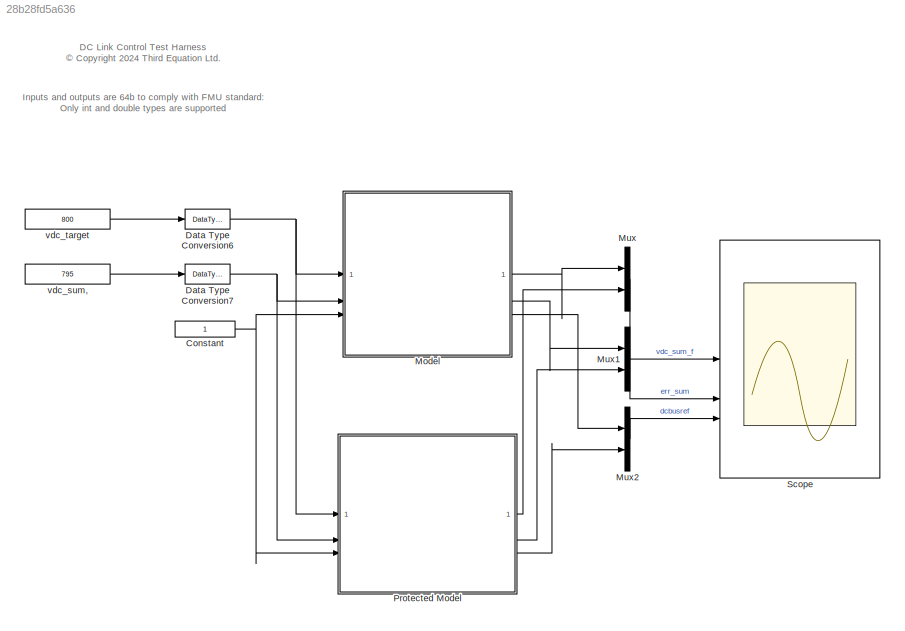
MODEL slx_28b28fd5a636
KIND model
CONFIG AbsTol = 1e-6
CONFIG EnableMultiTasking = off
CONFIG FixedStep = auto
CONFIG MaxStep = auto
CONFIG MinStep = auto
CONFIG RelTol = 1e-4
CONFIG SampleTimeConstraint = Unconstrained
CONFIG SolverName = FixedStepAuto
CONFIG StartTime = 0.0
CONFIG StopTime = inf
BLOCK [Constant] Constant
  OutDataTypeStr = boolean
BLOCK [DataTypeConversion] Data Type Conversion6
  OutDataTypeStr = single
  RndMeth = Floor
  SaturateOnIntegerOverflow = off
BLOCK [DataTypeConversion] Data Type Conversion7
  OutDataTypeStr = single
  RndMeth = Floor
  SaturateOnIntegerOverflow = off
BLOCK [ModelReference] Model
  ModelNameDialog = DC_core_control.slx
  ModelReferenceVersion = 1.16
BLOCK [Mux] Mux
  DisplayOption = bar
  Inputs = 2
BLOCK [Mux] Mux1
  DisplayOption = bar
  Inputs = 2
BLOCK [Mux] Mux2
  DisplayOption = bar
  Inputs = 2
BLOCK [ModelReference] Protected Model
  CopyOfModelProtected = on
  ModelNameDialog = DC_core_control_protected.slxp
  ModelReferenceVersion = 1.16
BLOCK [Scope] Scope
  Floating = off
  NumInputPorts = 3
  ScopeSpecificationString = Simulink.scopes.TimeScopeBlockCfg('CurrentConfiguration', extmgr.ConfigurationSet(extmgr.Configuration('Core','General UI',true),extmgr.Configuration('Core','Source UI',true),extmgr.Configuration('Sources','WiredSimulink',true),extmgr.Configuration('Visuals','Time Domain',true,'SerializedDisplays',{struct('MinYLimReal','695.00012','MaxYLimReal','895.00012','YLabelReal','','MinYLimMag','695.00012',...<+2745ch>
BLOCK [Constant] vdc_sum,
  OutDataTypeStr = double
  Value = 795
BLOCK [Constant] vdc_target
  OutDataTypeStr = double
  Value = 800
ANNOTATION (root): DC Link Control Test Harness <copyright redacted>
ANNOTATION (root): Inputs and outputs are 64b to comply with FMU standard: Only int and double types are supported
NET Constant:1 -> Model:3, Protected Model:3
NET Data Type Conversion6:1 -> Model:1, Protected Model:1
NET Data Type Conversion7:1 -> Model:2, Protected Model:2
LINE Model:1 -> Mux:1
LINE Model:2 -> Mux1:1
LINE Model:3 -> Mux2:1
LINE Mux1:1 -> Scope:2
LINE Mux2:1 -> Scope:3
LINE Mux:1 -> Scope:1
LINE Protected Model:1 -> Mux:2
LINE Protected Model:2 -> Mux1:2
LINE Protected Model:3 -> Mux2:2
LINE vdc_sum,:1 -> Data Type Conversion7:1
LINE vdc_target:1 -> Data Type Conversion6:1
note: NET lines group one-source signal fan-out (src -> all destinations, sorted); 1:1 wires keep LINE
